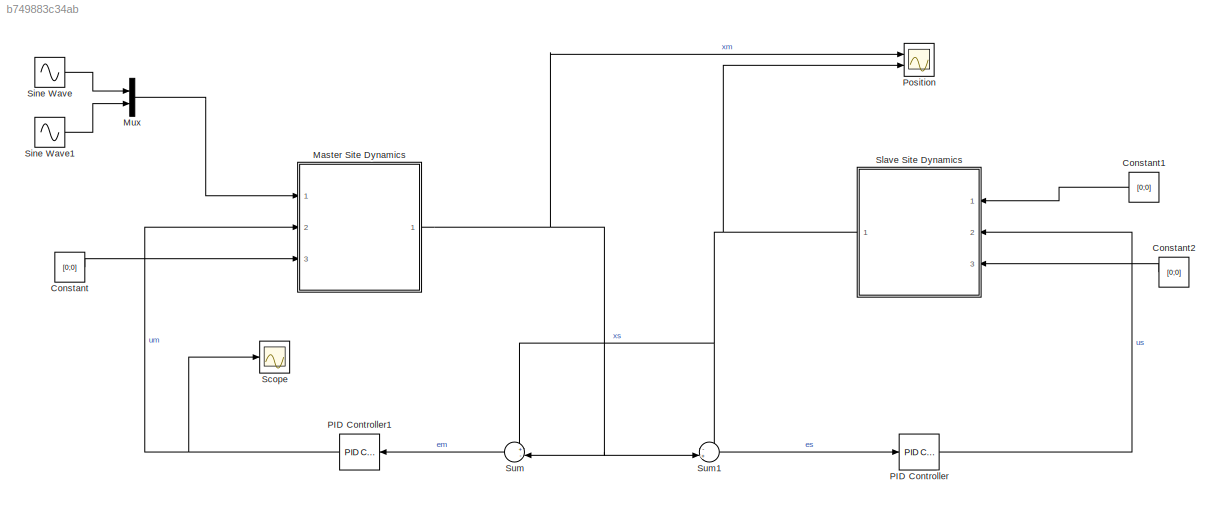
MODEL slx_b749883c34ab
KIND model
CONFIG AbsTol = auto
CONFIG EnableMultiTasking = off
CONFIG FixedStep = auto
CONFIG MaxStep = auto
CONFIG MinStep = auto
CONFIG RelTol = 1e-3
CONFIG SampleTimeConstraint = Unconstrained
CONFIG Solver = VariableStepAuto
CONFIG SolverName = VariableStepAuto
CONFIG StartTime = 0.0
CONFIG StopTime = 10.0
BLOCK [Constant] Constant
  Value = [0;0]
BLOCK [Constant] Constant1
  Value = [0;0]
BLOCK [Constant] Constant2
  Value = [0;0]
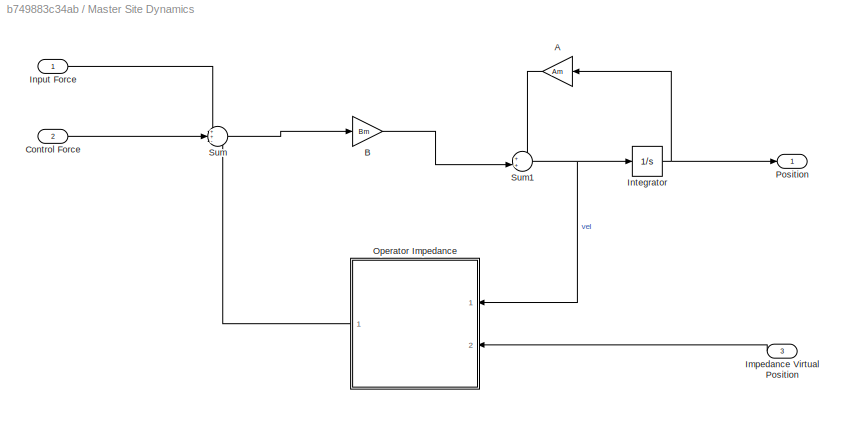
BLOCK [SubSystem] Master Site Dynamics
  Ports = [3, 1]
  RequestExecContextInheritance = off
  Variant = off
BLOCK [Gain] Master Site Dynamics/A
  Gain = Am
  Multiplication = Matrix(K*u)
  OutDataTypeStr = Inherit: Inherit via internal rule
  ParamDataTypeStr = Inherit: Inherit via internal rule
  SaturateOnIntegerOverflow = off
BLOCK [Gain] Master Site Dynamics/B
  Gain = Bm
  Multiplication = Matrix(K*u)
  OutDataTypeStr = Inherit: Inherit via internal rule
  ParamDataTypeStr = Inherit: Inherit via internal rule
  SaturateOnIntegerOverflow = off
BLOCK [Inport] Master Site Dynamics/Control Force
  IconDisplay = Port number
  Port = 2
BLOCK [Inport] Master Site Dynamics/Impedance Virtual Position
  IconDisplay = Port number
  Port = 3
BLOCK [Inport] Master Site Dynamics/Input Force
  IconDisplay = Port number
BLOCK [Integrator] Master Site Dynamics/Integrator
  Ports = [1, 1]
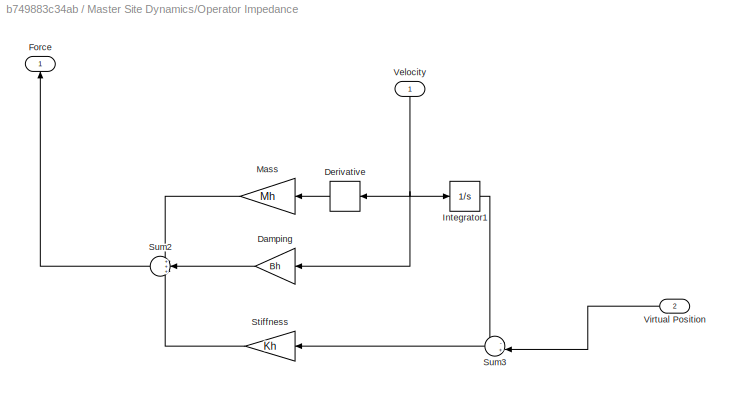
BLOCK [SubSystem] Master Site Dynamics/Operator Impedance
  Ports = [2, 1]
  RequestExecContextInheritance = off
  Variant = off
BLOCK [Gain] Master Site Dynamics/Operator Impedance/Damping
  Gain = Bh
  Multiplication = Matrix(K*u)
  OutDataTypeStr = Inherit: Inherit via internal rule
  ParamDataTypeStr = Inherit: Inherit via internal rule
  SaturateOnIntegerOverflow = off
BLOCK [Derivative] Master Site Dynamics/Operator Impedance/Derivative
BLOCK [Outport] Master Site Dynamics/Operator Impedance/Force
  IconDisplay = Port number
BLOCK [Integrator] Master Site Dynamics/Operator Impedance/Integrator1
  Ports = [1, 1]
BLOCK [Gain] Master Site Dynamics/Operator Impedance/Mass
  Gain = Mh
  Multiplication = Matrix(K*u)
  OutDataTypeStr = Inherit: Inherit via internal rule
  ParamDataTypeStr = Inherit: Inherit via internal rule
  SaturateOnIntegerOverflow = off
BLOCK [Gain] Master Site Dynamics/Operator Impedance/Stiffness
  Gain = Kh
  Multiplication = Matrix(K*u)
  OutDataTypeStr = Inherit: Inherit via internal rule
  ParamDataTypeStr = Inherit: Inherit via internal rule
  SaturateOnIntegerOverflow = off
BLOCK [Sum] Master Site Dynamics/Operator Impedance/Sum2
  IconShape = round
  InputSameDT = off
  Inputs = +++
  OutDataTypeStr = Inherit: Inherit via internal rule
  Ports = [3, 1]
  SaturateOnIntegerOverflow = off
BLOCK [Sum] Master Site Dynamics/Operator Impedance/Sum3
  IconShape = round
  InputSameDT = off
  Inputs = -+|
  OutDataTypeStr = Inherit: Inherit via internal rule
  Ports = [2, 1]
  SaturateOnIntegerOverflow = off
BLOCK [Inport] Master Site Dynamics/Operator Impedance/Velocity
  IconDisplay = Port number
BLOCK [Inport] Master Site Dynamics/Operator Impedance/Virtual Position
  IconDisplay = Port number
  Port = 2
BLOCK [Outport] Master Site Dynamics/Position
  IconDisplay = Port number
BLOCK [Sum] Master Site Dynamics/Sum
  IconShape = round
  InputSameDT = off
  Inputs = ++-
  OutDataTypeStr = Inherit: Inherit via internal rule
  Ports = [3, 1]
  SaturateOnIntegerOverflow = off
BLOCK [Sum] Master Site Dynamics/Sum1
  IconShape = round
  InputSameDT = off
  Inputs = ++|
  OutDataTypeStr = Inherit: Inherit via internal rule
  Ports = [2, 1]
  SaturateOnIntegerOverflow = off
BLOCK [Mux] Mux
  DisplayOption = bar
  Inputs = 2
  Ports = [2, 1]
BLOCK [Reference] PID Controller  REF=simulink/Continuous/PID Controller
  Ports = [1, 1]
  SourceBlock = simulink/Continuous/PID Controller
  SourceProductBaseCode = SL
  SourceProductName = Simulink
  SourceType = PID 1dof
BLOCK [Reference] PID Controller1  REF=simulink/Continuous/PID Controller
  Ports = [1, 1]
  SourceBlock = simulink/Continuous/PID Controller
  SourceProductBaseCode = SL
  SourceProductName = Simulink
  SourceType = PID 1dof
BLOCK [Scope] Position
  NumInputPorts = 2
  Ports = [2]
  ScopeSpecificationString = Simulink.scopes.TimeScopeBlockCfg('CurrentConfiguration', extmgr.ConfigurationSet(extmgr.Configuration('Core','General UI',true),extmgr.Configuration('Core','Source UI',true),extmgr.Configuration('Sources','WiredSimulink',true),extmgr.Configuration('Visuals','Time Domain',true,'SerializedDisplays',{struct('MinYLimReal','-1376.75996','MaxYLimReal','12390.83963','YLabelReal','','MinYLimMag','  0.000...<+1404ch>
BLOCK [Scope] Scope
  NumInputPorts = 1
  Ports = [1]
  ScopeSpecificationString = Simulink.scopes.TimeScopeBlockCfg('CurrentConfiguration', extmgr.ConfigurationSet(extmgr.Configuration('Core','General UI',true),extmgr.Configuration('Core','Source UI',true),extmgr.Configuration('Sources','WiredSimulink',true,'DataLoggingVariableName','ScopeData1'),extmgr.Configuration('Visuals','Time Domain',true,'SerializedDisplays',{struct('MinYLimReal','-1.87167','MaxYLimReal','1.767','YLabel...<+1399ch>
BLOCK [Sin] Sine Wave
  Ports = [0, 1]
  SampleTime = 0
BLOCK [Sin] Sine Wave1
  Amplitude = 2
  Ports = [0, 1]
  SampleTime = 0
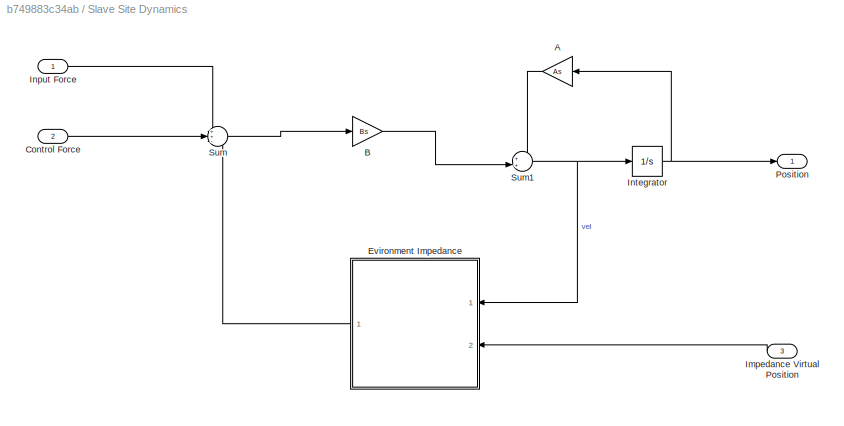
BLOCK [SubSystem] Slave Site Dynamics
  Ports = [3, 1]
  RequestExecContextInheritance = off
  Variant = off
BLOCK [Gain] Slave Site Dynamics/A
  Gain = As
  Multiplication = Matrix(K*u)
  OutDataTypeStr = Inherit: Inherit via internal rule
  ParamDataTypeStr = Inherit: Inherit via internal rule
  SaturateOnIntegerOverflow = off
BLOCK [Gain] Slave Site Dynamics/B
  Gain = Bs
  Multiplication = Matrix(K*u)
  OutDataTypeStr = Inherit: Inherit via internal rule
  ParamDataTypeStr = Inherit: Inherit via internal rule
  SaturateOnIntegerOverflow = off
BLOCK [Inport] Slave Site Dynamics/Control Force
  IconDisplay = Port number
  Port = 2
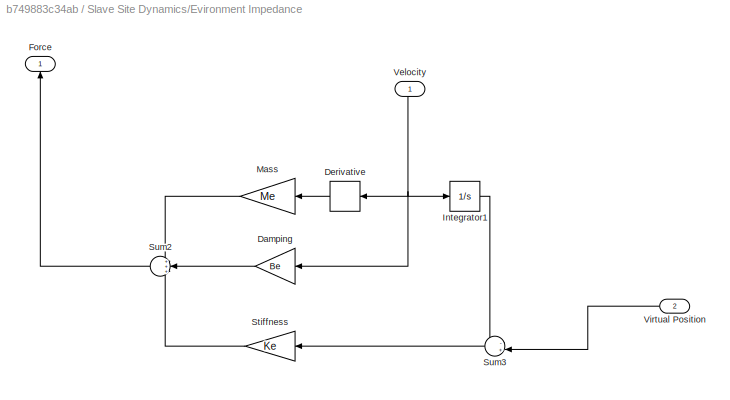
BLOCK [SubSystem] Slave Site Dynamics/Evironment Impedance
  Ports = [2, 1]
  RequestExecContextInheritance = off
  Variant = off
BLOCK [Gain] Slave Site Dynamics/Evironment Impedance/Damping
  Gain = Be
  Multiplication = Matrix(K*u)
  OutDataTypeStr = Inherit: Inherit via internal rule
  ParamDataTypeStr = Inherit: Inherit via internal rule
  SaturateOnIntegerOverflow = off
BLOCK [Derivative] Slave Site Dynamics/Evironment Impedance/Derivative
BLOCK [Outport] Slave Site Dynamics/Evironment Impedance/Force
  IconDisplay = Port number
BLOCK [Integrator] Slave Site Dynamics/Evironment Impedance/Integrator1
  Ports = [1, 1]
BLOCK [Gain] Slave Site Dynamics/Evironment Impedance/Mass
  Gain = Me
  Multiplication = Matrix(K*u)
  OutDataTypeStr = Inherit: Inherit via internal rule
  ParamDataTypeStr = Inherit: Inherit via internal rule
  SaturateOnIntegerOverflow = off
BLOCK [Gain] Slave Site Dynamics/Evironment Impedance/Stiffness
  Gain = Ke
  Multiplication = Matrix(K*u)
  OutDataTypeStr = Inherit: Inherit via internal rule
  ParamDataTypeStr = Inherit: Inherit via internal rule
  SaturateOnIntegerOverflow = off
BLOCK [Sum] Slave Site Dynamics/Evironment Impedance/Sum2
  IconShape = round
  InputSameDT = off
  Inputs = +++
  OutDataTypeStr = Inherit: Inherit via internal rule
  Ports = [3, 1]
  SaturateOnIntegerOverflow = off
BLOCK [Sum] Slave Site Dynamics/Evironment Impedance/Sum3
  IconShape = round
  InputSameDT = off
  Inputs = -+|
  OutDataTypeStr = Inherit: Inherit via internal rule
  Ports = [2, 1]
  SaturateOnIntegerOverflow = off
BLOCK [Inport] Slave Site Dynamics/Evironment Impedance/Velocity
  IconDisplay = Port number
BLOCK [Inport] Slave Site Dynamics/Evironment Impedance/Virtual Position
  IconDisplay = Port number
  Port = 2
BLOCK [Inport] Slave Site Dynamics/Impedance Virtual Position
  IconDisplay = Port number
  Port = 3
BLOCK [Inport] Slave Site Dynamics/Input Force
  IconDisplay = Port number
BLOCK [Integrator] Slave Site Dynamics/Integrator
  Ports = [1, 1]
BLOCK [Outport] Slave Site Dynamics/Position
  IconDisplay = Port number
BLOCK [Sum] Slave Site Dynamics/Sum
  IconShape = round
  InputSameDT = off
  Inputs = ++-
  OutDataTypeStr = Inherit: Inherit via internal rule
  Ports = [3, 1]
  SaturateOnIntegerOverflow = off
BLOCK [Sum] Slave Site Dynamics/Sum1
  IconShape = round
  InputSameDT = off
  Inputs = ++|
  OutDataTypeStr = Inherit: Inherit via internal rule
  Ports = [2, 1]
  SaturateOnIntegerOverflow = off
BLOCK [Sum] Sum
  IconShape = round
  InputSameDT = off
  Inputs = +-|
  OutDataTypeStr = Inherit: Inherit via internal rule
  Ports = [2, 1]
  SaturateOnIntegerOverflow = off
BLOCK [Sum] Sum1
  IconShape = round
  InputSameDT = off
  Inputs = -+|
  OutDataTypeStr = Inherit: Inherit via internal rule
  Ports = [2, 1]
  SaturateOnIntegerOverflow = off
LINE Constant1:1 -> Slave Site Dynamics:1
LINE Constant2:1 -> Slave Site Dynamics:3
LINE Constant:1 -> Master Site Dynamics:3
LINE Master Site Dynamics/A:1 -> Master Site Dynamics/Sum1:1
LINE Master Site Dynamics/B:1 -> Master Site Dynamics/Sum1:2
LINE Master Site Dynamics/Control Force:1 -> Master Site Dynamics/Sum:2
LINE Master Site Dynamics/Impedance Virtual Position:1 -> Master Site Dynamics/Operator Impedance:2
LINE Master Site Dynamics/Input Force:1 -> Master Site Dynamics/Sum:1
NET Master Site Dynamics/Integrator:1 -> Master Site Dynamics/A:1, Master Site Dynamics/Position:1
LINE Master Site Dynamics/Operator Impedance/Damping:1 -> Master Site Dynamics/Operator Impedance/Sum2:2
LINE Master Site Dynamics/Operator Impedance/Derivative:1 -> Master Site Dynamics/Operator Impedance/Mass:1
LINE Master Site Dynamics/Operator Impedance/Integrator1:1 -> Master Site Dynamics/Operator Impedance/Sum3:1
LINE Master Site Dynamics/Operator Impedance/Mass:1 -> Master Site Dynamics/Operator Impedance/Sum2:1
LINE Master Site Dynamics/Operator Impedance/Stiffness:1 -> Master Site Dynamics/Operator Impedance/Sum2:3
LINE Master Site Dynamics/Operator Impedance/Sum2:1 -> Master Site Dynamics/Operator Impedance/Force:1
LINE Master Site Dynamics/Operator Impedance/Sum3:1 -> Master Site Dynamics/Operator Impedance/Stiffness:1
NET Master Site Dynamics/Operator Impedance/Velocity:1 -> Master Site Dynamics/Operator Impedance/Damping:1, Master Site Dynamics/Operator Impedance/Derivative:1, Master Site Dynamics/Operator Impedance/Integrator1:1
LINE Master Site Dynamics/Operator Impedance/Virtual Position:1 -> Master Site Dynamics/Operator Impedance/Sum3:2
LINE Master Site Dynamics/Operator Impedance:1 -> Master Site Dynamics/Sum:3
NET Master Site Dynamics/Sum1:1 -> Master Site Dynamics/Integrator:1, Master Site Dynamics/Operator Impedance:1
LINE Master Site Dynamics/Sum:1 -> Master Site Dynamics/B:1
NET Master Site Dynamics:1 -> Position:1, Sum1:2, Sum:2
LINE Mux:1 -> Master Site Dynamics:1
NET PID Controller1:1 -> Master Site Dynamics:2, Scope:1
LINE PID Controller:1 -> Slave Site Dynamics:2
LINE Sine Wave1:1 -> Mux:2
LINE Sine Wave:1 -> Mux:1
LINE Slave Site Dynamics/A:1 -> Slave Site Dynamics/Sum1:1
LINE Slave Site Dynamics/B:1 -> Slave Site Dynamics/Sum1:2
LINE Slave Site Dynamics/Control Force:1 -> Slave Site Dynamics/Sum:2
LINE Slave Site Dynamics/Evironment Impedance/Damping:1 -> Slave Site Dynamics/Evironment Impedance/Sum2:2
LINE Slave Site Dynamics/Evironment Impedance/Derivative:1 -> Slave Site Dynamics/Evironment Impedance/Mass:1
LINE Slave Site Dynamics/Evironment Impedance/Integrator1:1 -> Slave Site Dynamics/Evironment Impedance/Sum3:1
LINE Slave Site Dynamics/Evironment Impedance/Mass:1 -> Slave Site Dynamics/Evironment Impedance/Sum2:1
LINE Slave Site Dynamics/Evironment Impedance/Stiffness:1 -> Slave Site Dynamics/Evironment Impedance/Sum2:3
LINE Slave Site Dynamics/Evironment Impedance/Sum2:1 -> Slave Site Dynamics/Evironment Impedance/Force:1
LINE Slave Site Dynamics/Evironment Impedance/Sum3:1 -> Slave Site Dynamics/Evironment Impedance/Stiffness:1
NET Slave Site Dynamics/Evironment Impedance/Velocity:1 -> Slave Site Dynamics/Evironment Impedance/Damping:1, Slave Site Dynamics/Evironment Impedance/Derivative:1, Slave Site Dynamics/Evironment Impedance/Integrator1:1
LINE Slave Site Dynamics/Evironment Impedance/Virtual Position:1 -> Slave Site Dynamics/Evironment Impedance/Sum3:2
LINE Slave Site Dynamics/Evironment Impedance:1 -> Slave Site Dynamics/Sum:3
LINE Slave Site Dynamics/Impedance Virtual Position:1 -> Slave Site Dynamics/Evironment Impedance:2
LINE Slave Site Dynamics/Input Force:1 -> Slave Site Dynamics/Sum:1
NET Slave Site Dynamics/Integrator:1 -> Slave Site Dynamics/A:1, Slave Site Dynamics/Position:1
NET Slave Site Dynamics/Sum1:1 -> Slave Site Dynamics/Evironment Impedance:1, Slave Site Dynamics/Integrator:1
LINE Slave Site Dynamics/Sum:1 -> Slave Site Dynamics/B:1
NET Slave Site Dynamics:1 -> Position:2, Sum1:1, Sum:1
LINE Sum1:1 -> PID Controller:1
LINE Sum:1 -> PID Controller1:1
note: NET lines group one-source signal fan-out (src -> all destinations, sorted); 1:1 wires keep LINE
